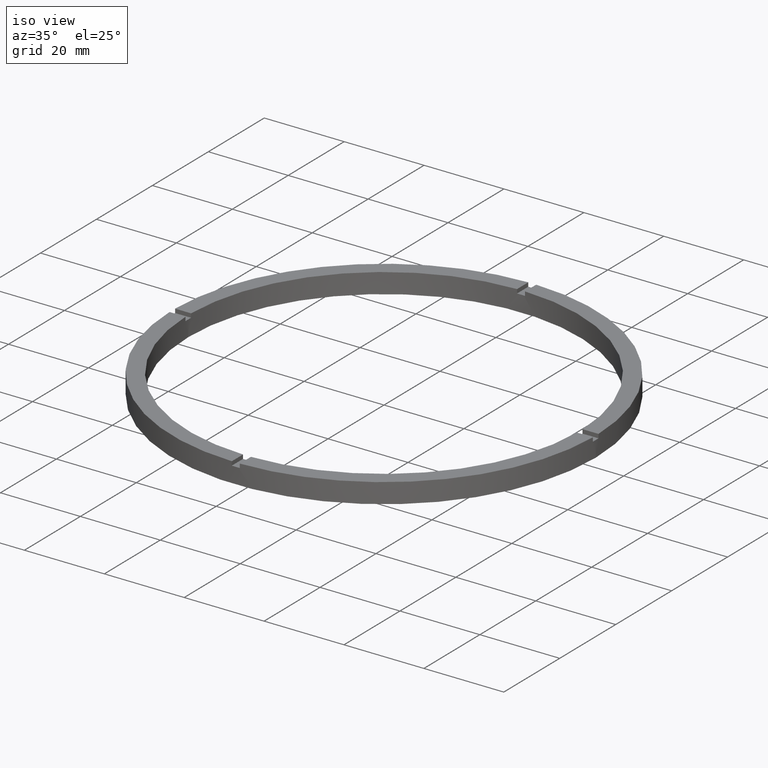
[diagram: clean part render]
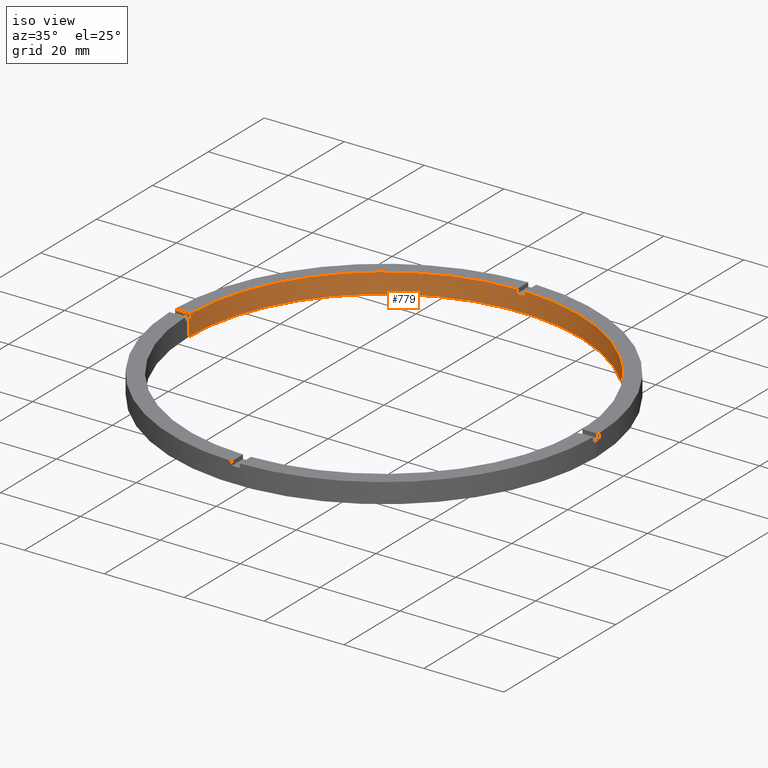
[diagram: same view with one face highlighted and labeled with its STEP entity id]
A machine part, iso view. The second image highlights one B-rep face of the part: STEP entity #779.
In plain terms, the highlighted cylindrical surface (partial cylindrical patch) has radius 49 mm, axis along (-0, -0, -1).
Its self-contained STEP definition (entity closure, byte-faithful):
#13 = CARTESIAN_POINT ( 'NONE',  ( -48.98979485566356118, 0.9999999999999685807, 5.000000000000000000 ) ) ;
#17 = EDGE_CURVE ( 'NONE', #473, #504, #358, .T. ) ;
#29 = VECTOR ( 'NONE', #564, 1000.000000000000000 ) ;
#40 = CARTESIAN_POINT ( 'NONE',  ( 0.000000000000000000, 0.000000000000000000, 4.000000000000000000 ) ) ;
#42 = CIRCLE ( 'NONE', #424, 49.00000000000000000 ) ;
#51 = EDGE_CURVE ( 'NONE', #459, #240, #97, .T. ) ;
#53 = CIRCLE ( 'NONE', #489, 49.00000000000000000 ) ;
#57 = LINE ( 'NONE', #769, #29 ) ;
#60 = VECTOR ( 'NONE', #254, 1000.000000000000000 ) ;
#62 = EDGE_CURVE ( 'NONE', #407, #723, #87, .T. ) ;
#80 = CYLINDRICAL_SURFACE ( 'NONE', #545, 49.00000000000000000 ) ;
#87 = LINE ( 'NONE', #670, #617 ) ;
#94 = VECTOR ( 'NONE', #259, 1000.000000000000000 ) ;
#97 = CIRCLE ( 'NONE', #414, 49.00000000000000000 ) ;
#100 = CARTESIAN_POINT ( 'NONE',  ( -48.98979485566356118, 0.9999999999999685807, 4.000000000000000000 ) ) ;
#102 = DIRECTION ( 'NONE',  ( 0.000000000000000000, 0.000000000000000000, 1.000000000000000000 ) ) ;
#114 = DIRECTION ( 'NONE',  ( 1.000000000000000000, 0.000000000000000000, 0.000000000000000000 ) ) ;
#120 = CARTESIAN_POINT ( 'NONE',  ( 48.98979485566356828, 0.9999999999998452349, 5.000000000000000000 ) ) ;
#124 = CARTESIAN_POINT ( 'NONE',  ( 0.9999999999999729106, 48.98979485566356118, 5.000000000000000000 ) ) ;
#130 = ORIENTED_EDGE ( 'NONE', *, *, #554, .T. ) ;
#134 = ORIENTED_EDGE ( 'NONE', *, *, #17, .T. ) ;
#135 = DIRECTION ( 'NONE',  ( 0.000000000000000000, 0.000000000000000000, 1.000000000000000000 ) ) ;
#136 = ORIENTED_EDGE ( 'NONE', *, *, #697, .F. ) ;
#153 = EDGE_CURVE ( 'NONE', #437, #240, #620, .T. ) ;
#194 = VERTEX_POINT ( 'NONE', #124 ) ;
#196 = DIRECTION ( 'NONE',  ( -0.000000000000000000, -0.000000000000000000, -1.000000000000000000 ) ) ;
#198 = ORIENTED_EDGE ( 'NONE', *, *, #278, .T. ) ;
#208 = ORIENTED_EDGE ( 'NONE', *, *, #530, .F. ) ;
#218 = DIRECTION ( 'NONE',  ( 1.000000000000000000, 0.000000000000000000, 0.000000000000000000 ) ) ;
#220 = ORIENTED_EDGE ( 'NONE', *, *, #153, .T. ) ;
#229 = ORIENTED_EDGE ( 'NONE', *, *, #686, .F. ) ;
#236 = ORIENTED_EDGE ( 'NONE', *, *, #62, .F. ) ;
#240 = VERTEX_POINT ( 'NONE', #523 ) ;
#248 = DIRECTION ( 'NONE',  ( 1.000000000000000000, 0.000000000000000000, 0.000000000000000000 ) ) ;
#254 = DIRECTION ( 'NONE',  ( -0.000000000000000000, -0.000000000000000000, -1.000000000000000000 ) ) ;
#259 = DIRECTION ( 'NONE',  ( -0.000000000000000000, -0.000000000000000000, -1.000000000000000000 ) ) ;
#269 = AXIS2_PLACEMENT_3D ( 'NONE', #350, #643, #279 ) ;
#278 = EDGE_CURVE ( 'NONE', #710, #194, #42, .T. ) ;
#279 = DIRECTION ( 'NONE',  ( 1.000000000000000000, 0.000000000000000000, 0.000000000000000000 ) ) ;
#281 = DIRECTION ( 'NONE',  ( 1.000000000000000000, 0.000000000000000000, 0.000000000000000000 ) ) ;
#303 = LINE ( 'NONE', #495, #561 ) ;
#320 = CIRCLE ( 'NONE', #506, 49.00000000000000000 ) ;
#332 = LINE ( 'NONE', #556, #595 ) ;
#335 = FACE_OUTER_BOUND ( 'NONE', #466, .T. ) ;
#349 = EDGE_CURVE ( 'NONE', #746, #459, #57, .T. ) ;
#350 = CARTESIAN_POINT ( 'NONE',  ( 0.000000000000000000, 0.000000000000000000, 4.000000000000000000 ) ) ;
#358 = CIRCLE ( 'NONE', #269, 49.00000000000000000 ) ;
#364 = CARTESIAN_POINT ( 'NONE',  ( -1.000000000000027089, 48.98979485566356118, 4.000000000000000000 ) ) ;
#374 = CARTESIAN_POINT ( 'NONE',  ( 48.98979485566356828, 0.9999999999998452349, 5.000000000000000000 ) ) ;
#381 = CARTESIAN_POINT ( 'NONE',  ( 0.000000000000000000, 0.000000000000000000, 0.000000000000000000 ) ) ;
#403 = ORIENTED_EDGE ( 'NONE', *, *, #600, .T. ) ;
#407 = VERTEX_POINT ( 'NONE', #100 ) ;
#414 = AXIS2_PLACEMENT_3D ( 'NONE', #381, #623, #218 ) ;
#417 = CARTESIAN_POINT ( 'NONE',  ( 0.000000000000000000, 0.000000000000000000, 4.000000000000000000 ) ) ;
#424 = AXIS2_PLACEMENT_3D ( 'NONE', #774, #758, #114 ) ;
#425 = DIRECTION ( 'NONE',  ( 1.000000000000000000, 0.000000000000000000, 0.000000000000000000 ) ) ;
#436 = DIRECTION ( 'NONE',  ( 0.000000000000000000, 0.000000000000000000, 1.000000000000000000 ) ) ;
#437 = VERTEX_POINT ( 'NONE', #639 ) ;
#442 = CARTESIAN_POINT ( 'NONE',  ( 0.000000000000000000, 0.000000000000000000, 5.000000000000000000 ) ) ;
#459 = VERTEX_POINT ( 'NONE', #482 ) ;
#465 = VERTEX_POINT ( 'NONE', #780 ) ;
#466 = EDGE_LOOP ( 'NONE', ( #647, #403, #136, #198, #229, #134, #208, #130, #236, #658, #220, #648 ) ) ;
#473 = VERTEX_POINT ( 'NONE', #635 ) ;
#482 = CARTESIAN_POINT ( 'NONE',  ( 49.00000000000000000, 6.000769315822030937E-15, 0.000000000000000000 ) ) ;
#489 = AXIS2_PLACEMENT_3D ( 'NONE', #40, #102, #248 ) ;
#495 = CARTESIAN_POINT ( 'NONE',  ( -1.000000000000027089, 48.98979485566356118, 5.000000000000000000 ) ) ;
#501 = EDGE_CURVE ( 'NONE', #407, #437, #320, .T. ) ;
#504 = VERTEX_POINT ( 'NONE', #364 ) ;
#505 = VERTEX_POINT ( 'NONE', #732 ) ;
#506 = AXIS2_PLACEMENT_3D ( 'NONE', #417, #596, #425 ) ;
#523 = CARTESIAN_POINT ( 'NONE',  ( -49.00000000000000000, 0.000000000000000000, 0.000000000000000000 ) ) ;
#530 = EDGE_CURVE ( 'NONE', #505, #504, #303, .T. ) ;
#542 = CARTESIAN_POINT ( 'NONE',  ( -49.00000000000000000, 0.000000000000000000, 5.000000000000000000 ) ) ;
#545 = AXIS2_PLACEMENT_3D ( 'NONE', #442, #196, #656 ) ;
#554 = EDGE_CURVE ( 'NONE', #505, #723, #569, .T. ) ;
#556 = CARTESIAN_POINT ( 'NONE',  ( 0.9999999999999729106, 48.98979485566356118, 5.000000000000000000 ) ) ;
#561 = VECTOR ( 'NONE', #585, 1000.000000000000000 ) ;
#564 = DIRECTION ( 'NONE',  ( -0.000000000000000000, -0.000000000000000000, -1.000000000000000000 ) ) ;
#569 = CIRCLE ( 'NONE', #578, 49.00000000000000000 ) ;
#578 = AXIS2_PLACEMENT_3D ( 'NONE', #728, #436, #281 ) ;
#585 = DIRECTION ( 'NONE',  ( -0.000000000000000000, -0.000000000000000000, -1.000000000000000000 ) ) ;
#595 = VECTOR ( 'NONE', #135, 1000.000000000000000 ) ;
#596 = DIRECTION ( 'NONE',  ( 0.000000000000000000, 0.000000000000000000, 1.000000000000000000 ) ) ;
#600 = EDGE_CURVE ( 'NONE', #746, #465, #53, .T. ) ;
#608 = LINE ( 'NONE', #120, #60 ) ;
#617 = VECTOR ( 'NONE', #633, 1000.000000000000000 ) ;
#620 = LINE ( 'NONE', #542, #94 ) ;
#623 = DIRECTION ( 'NONE',  ( 0.000000000000000000, 0.000000000000000000, 1.000000000000000000 ) ) ;
#633 = DIRECTION ( 'NONE',  ( 0.000000000000000000, 0.000000000000000000, 1.000000000000000000 ) ) ;
#635 = CARTESIAN_POINT ( 'NONE',  ( 0.9999999999999729106, 48.98979485566356118, 4.000000000000000000 ) ) ;
#639 = CARTESIAN_POINT ( 'NONE',  ( -49.00000000000000000, 0.000000000000000000, 4.000000000000000000 ) ) ;
#643 = DIRECTION ( 'NONE',  ( 0.000000000000000000, -0.000000000000000000, 1.000000000000000000 ) ) ;
#647 = ORIENTED_EDGE ( 'NONE', *, *, #349, .F. ) ;
#648 = ORIENTED_EDGE ( 'NONE', *, *, #51, .F. ) ;
#656 = DIRECTION ( 'NONE',  ( -1.000000000000000000, 0.000000000000000000, 0.000000000000000000 ) ) ;
#658 = ORIENTED_EDGE ( 'NONE', *, *, #501, .T. ) ;
#670 = CARTESIAN_POINT ( 'NONE',  ( -48.98979485566356118, 0.9999999999999685807, 5.000000000000000000 ) ) ;
#686 = EDGE_CURVE ( 'NONE', #473, #194, #332, .T. ) ;
#697 = EDGE_CURVE ( 'NONE', #710, #465, #608, .T. ) ;
#710 = VERTEX_POINT ( 'NONE', #374 ) ;
#723 = VERTEX_POINT ( 'NONE', #13 ) ;
#728 = CARTESIAN_POINT ( 'NONE',  ( 0.000000000000000000, 0.000000000000000000, 5.000000000000000000 ) ) ;
#732 = CARTESIAN_POINT ( 'NONE',  ( -1.000000000000027089, 48.98979485566356118, 5.000000000000000000 ) ) ;
#746 = VERTEX_POINT ( 'NONE', #750 ) ;
#750 = CARTESIAN_POINT ( 'NONE',  ( 49.00000000000000000, 6.000769315822030937E-15, 4.000000000000000000 ) ) ;
#758 = DIRECTION ( 'NONE',  ( 0.000000000000000000, 0.000000000000000000, 1.000000000000000000 ) ) ;
#769 = CARTESIAN_POINT ( 'NONE',  ( 49.00000000000000000, 6.000769315822030937E-15, 5.000000000000000000 ) ) ;
#774 = CARTESIAN_POINT ( 'NONE',  ( 0.000000000000000000, 0.000000000000000000, 5.000000000000000000 ) ) ;
#779 = ADVANCED_FACE ( 'NONE', ( #335 ), #80, .F. ) ;
#780 = CARTESIAN_POINT ( 'NONE',  ( 48.98979485566356828, 0.9999999999998452349, 4.000000000000000000 ) ) ;